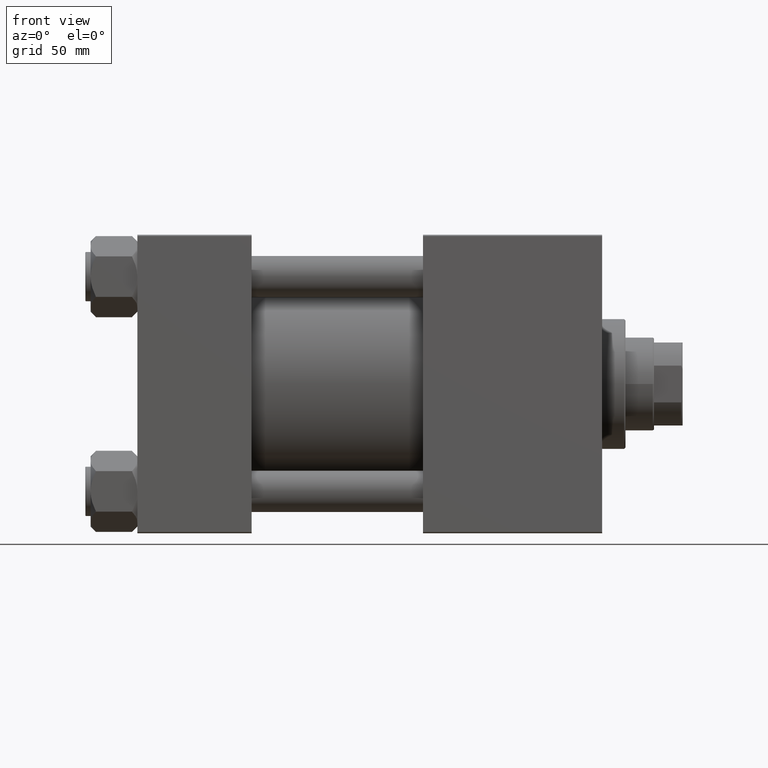
[diagram: clean part render]
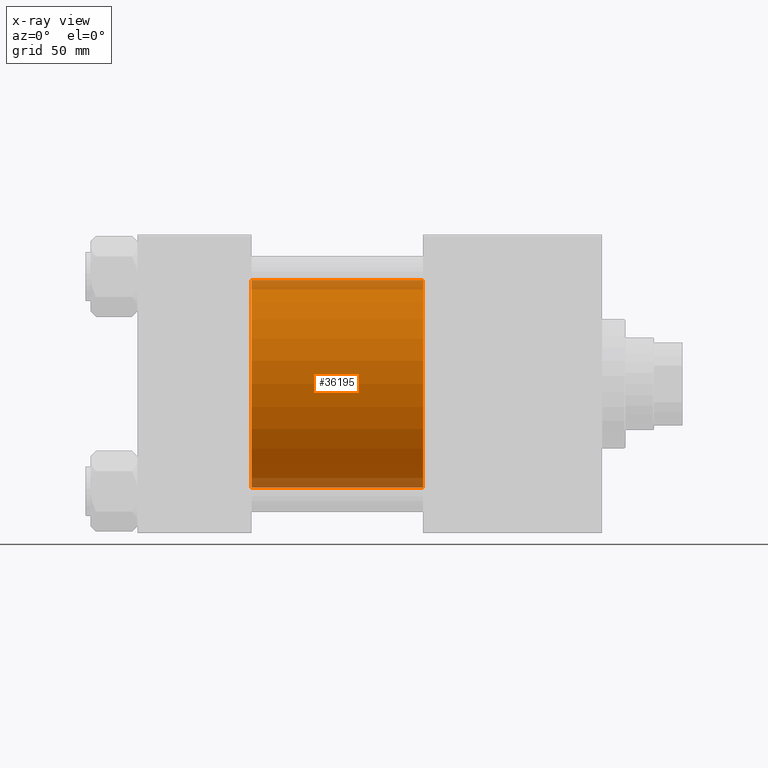
[diagram: x-ray — body ghosted, one internal face saturated and labeled with its STEP entity id]
A machine part, front view, then the same camera in x-ray: the body is ghosted and one INTERNAL B-rep face — a face not visible from any outside direction — is saturated and labeled: STEP entity #36195.
In plain terms, the highlighted cylindrical surface (partial cylindrical patch) has radius 40 mm, axis along (-1, -0, -0).
Its self-contained STEP definition (entity closure, byte-faithful):
#15 = VECTOR ( 'NONE', #27241, 1000.000000000000000 ) ;
#24 = CYLINDRICAL_SURFACE ( 'NONE', #39108, 40.00000000000000000 ) ;
#653 = AXIS2_PLACEMENT_3D ( 'NONE', #43680, #4628, #1524 ) ;
#1524 = DIRECTION ( 'NONE',  ( 0.000000000000000000, 0.000000000000000000, -1.000000000000000000 ) ) ;
#4628 = DIRECTION ( 'NONE',  ( 1.000000000000000000, 0.000000000000000000, 0.000000000000000000 ) ) ;
#8562 = DIRECTION ( 'NONE',  ( -1.000000000000000000, -0.000000000000000000, -0.000000000000000000 ) ) ;
#9656 = ORIENTED_EDGE ( 'NONE', *, *, #23339, .F. ) ;
#10563 = AXIS2_PLACEMENT_3D ( 'NONE', #27425, #28185, #12282 ) ;
#10866 = FACE_OUTER_BOUND ( 'NONE', #48587, .T. ) ;
#12282 = DIRECTION ( 'NONE',  ( 0.000000000000000000, 0.000000000000000000, -1.000000000000000000 ) ) ;
#13195 = CARTESIAN_POINT ( 'NONE',  ( 110.0000000000000000, -2.602085213965210642E-15, 40.00000000000000000 ) ) ;
#13707 = CARTESIAN_POINT ( 'NONE',  ( 44.00000000000000000, 2.296501982624201990E-15, -40.00000000000000000 ) ) ;
#15226 = DIRECTION ( 'NONE',  ( -1.000000000000000000, -0.000000000000000000, -0.000000000000000000 ) ) ;
#17040 = VERTEX_POINT ( 'NONE', #23607 ) ;
#19778 = VERTEX_POINT ( 'NONE', #44476 ) ;
#22999 = CARTESIAN_POINT ( 'NONE',  ( 44.00000000000000000, -2.602085213965210642E-15, 40.00000000000000000 ) ) ;
#23339 = EDGE_CURVE ( 'NONE', #19778, #24505, #36557, .T. ) ;
#23607 = CARTESIAN_POINT ( 'NONE',  ( 110.0000000000000000, 2.296501982624201990E-15, -40.00000000000000000 ) ) ;
#24505 = VERTEX_POINT ( 'NONE', #22999 ) ;
#25431 = VERTEX_POINT ( 'NONE', #13707 ) ;
#27241 = DIRECTION ( 'NONE',  ( -1.000000000000000000, -0.000000000000000000, -0.000000000000000000 ) ) ;
#27425 = CARTESIAN_POINT ( 'NONE',  ( 44.00000000000000000, -2.602085213965210642E-15, 0.000000000000000000 ) ) ;
#27687 = EDGE_CURVE ( 'NONE', #19778, #17040, #50722, .T. ) ;
#28185 = DIRECTION ( 'NONE',  ( 1.000000000000000000, 0.000000000000000000, 0.000000000000000000 ) ) ;
#28422 = EDGE_CURVE ( 'NONE', #24505, #25431, #32696, .T. ) ;
#29493 = ORIENTED_EDGE ( 'NONE', *, *, #27687, .T. ) ;
#31198 = ORIENTED_EDGE ( 'NONE', *, *, #28422, .F. ) ;
#32696 = CIRCLE ( 'NONE', #10563, 40.00000000000000000 ) ;
#36195 = ADVANCED_FACE ( 'NONE', ( #10866 ), #24, .F. ) ;
#36557 = LINE ( 'NONE', #13195, #43327 ) ;
#37978 = ORIENTED_EDGE ( 'NONE', *, *, #50386, .T. ) ;
#39097 = DIRECTION ( 'NONE',  ( 0.000000000000000000, 0.000000000000000000, 1.000000000000000000 ) ) ;
#39108 = AXIS2_PLACEMENT_3D ( 'NONE', #50381, #15226, #39097 ) ;
#43134 = CARTESIAN_POINT ( 'NONE',  ( 110.0000000000000000, 2.296501982624201990E-15, -40.00000000000000000 ) ) ;
#43327 = VECTOR ( 'NONE', #8562, 1000.000000000000000 ) ;
#43680 = CARTESIAN_POINT ( 'NONE',  ( 110.0000000000000000, -2.602085213965210642E-15, 0.000000000000000000 ) ) ;
#44476 = CARTESIAN_POINT ( 'NONE',  ( 110.0000000000000000, -2.602085213965210642E-15, 40.00000000000000000 ) ) ;
#46728 = LINE ( 'NONE', #43134, #15 ) ;
#48587 = EDGE_LOOP ( 'NONE', ( #29493, #37978, #31198, #9656 ) ) ;
#50381 = CARTESIAN_POINT ( 'NONE',  ( 110.0000000000000000, -2.602085213965210642E-15, 0.000000000000000000 ) ) ;
#50386 = EDGE_CURVE ( 'NONE', #17040, #25431, #46728, .T. ) ;
#50722 = CIRCLE ( 'NONE', #653, 40.00000000000000000 ) ;